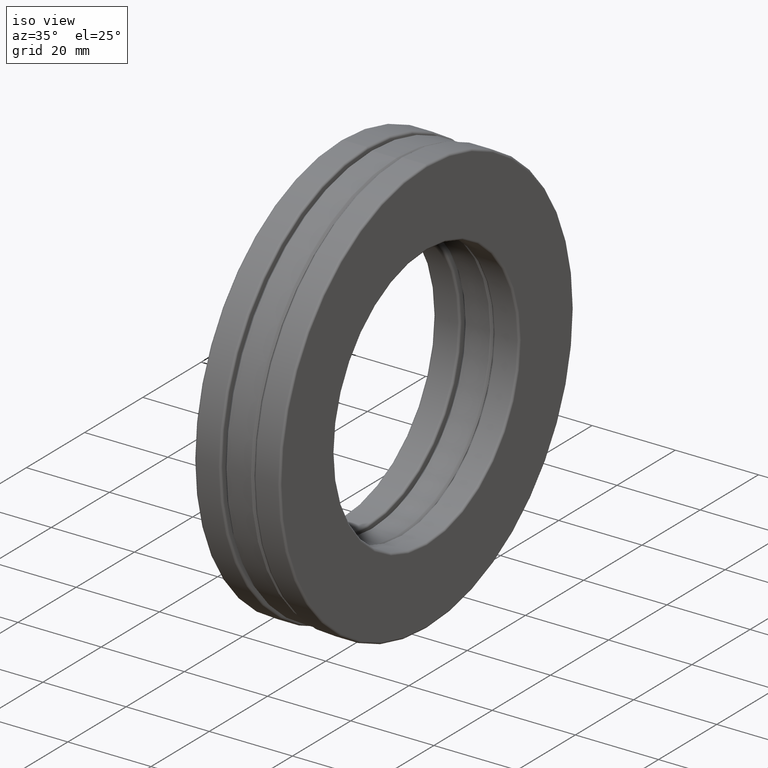
[diagram: clean part render]
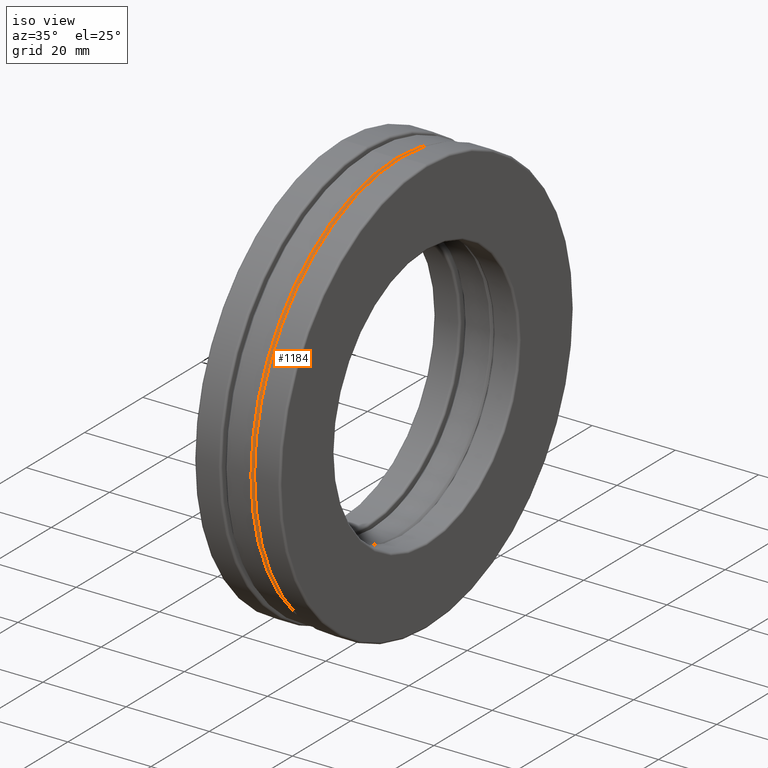
[diagram: same view with one face highlighted and labeled with its STEP entity id]
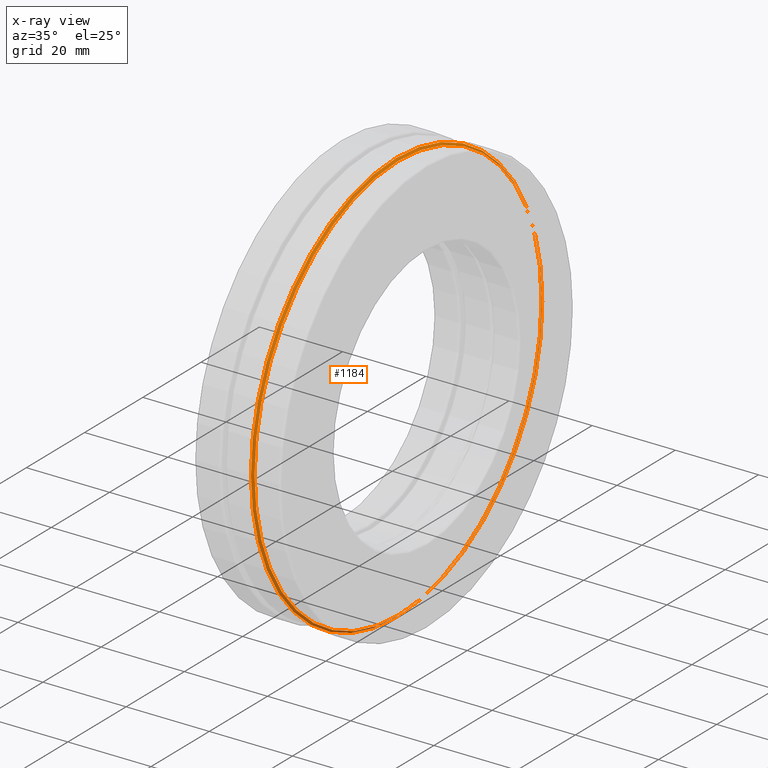
[diagram: x-ray of the same camera — body ghosted, the highlighted face saturated]
A machine part, iso view. The second image highlights one B-rep face of the part: STEP entity #1184.
The next image is the same camera in x-ray: the body ghosted, the highlighted face saturated — about 2% of this face is hidden behind the body in this view.
In plain terms, the highlighted conical surface has half-angle 45 deg.
Its self-contained STEP definition (entity closure, byte-faithful):
#82 = EDGE_LOOP ( 'NONE', ( #84 ) ) ;
#84 = ORIENTED_EDGE ( 'NONE', *, *, #1072, .F. ) ;
#107 = FACE_OUTER_BOUND ( 'NONE', #82, .T. ) ;
#274 = FACE_BOUND ( 'NONE', #1035, .T. ) ;
#437 = DIRECTION ( 'NONE',  ( 0.0000000000000000000, 0.0000000000000000000, 1.000000000000000000 ) ) ;
#454 = DIRECTION ( 'NONE',  ( -1.000000000000000000, -0.0000000000000000000, -0.0000000000000000000 ) ) ;
#466 = EDGE_CURVE ( 'NONE', #941, #941, #963, .T. ) ;
#531 = AXIS2_PLACEMENT_3D ( 'NONE', #1122, #910, #904 ) ;
#623 = DIRECTION ( 'NONE',  ( -1.000000000000000000, -0.0000000000000000000, -0.0000000000000000000 ) ) ;
#771 = CARTESIAN_POINT ( 'NONE',  ( 0.1160000000000000100, 0.0000000000000000000, 1.964375000000000000 ) ) ;
#781 = ORIENTED_EDGE ( 'NONE', *, *, #466, .T. ) ;
#878 = CARTESIAN_POINT ( 'NONE',  ( 0.1359999999999999800, 0.0000000000000000000, 1.944375000000000000 ) ) ;
#904 = DIRECTION ( 'NONE',  ( 0.0000000000000000000, 0.0000000000000000000, 1.000000000000000000 ) ) ;
#910 = DIRECTION ( 'NONE',  ( -1.000000000000000000, -0.0000000000000000000, -0.0000000000000000000 ) ) ;
#941 = VERTEX_POINT ( 'NONE', #878 ) ;
#963 = CIRCLE ( 'NONE', #1259, 1.944375000000000000 ) ;
#996 = CARTESIAN_POINT ( 'NONE',  ( 0.1359999999999999800, 0.0000000000000000000, 0.0000000000000000000 ) ) ;
#1035 = EDGE_LOOP ( 'NONE', ( #781 ) ) ;
#1072 = EDGE_CURVE ( 'NONE', #1426, #1426, #1213, .T. ) ;
#1082 = DIRECTION ( 'NONE',  ( 0.0000000000000000000, 0.0000000000000000000, 1.000000000000000000 ) ) ;
#1122 = CARTESIAN_POINT ( 'NONE',  ( 0.1160000000000000100, 0.0000000000000000000, 0.0000000000000000000 ) ) ;
#1184 = ADVANCED_FACE ( 'NONE', ( #274, #107 ), #1284, .T. ) ;
#1186 = CARTESIAN_POINT ( 'NONE',  ( 0.1160000000000000100, 0.0000000000000000000, 0.0000000000000000000 ) ) ;
#1213 = CIRCLE ( 'NONE', #1309, 1.964375000000000000 ) ;
#1259 = AXIS2_PLACEMENT_3D ( 'NONE', #996, #454, #437 ) ;
#1284 = CONICAL_SURFACE ( 'NONE', #531, 1.964375000000000000, 0.7853981633974503900 ) ;
#1309 = AXIS2_PLACEMENT_3D ( 'NONE', #1186, #623, #1082 ) ;
#1426 = VERTEX_POINT ( 'NONE', #771 ) ;